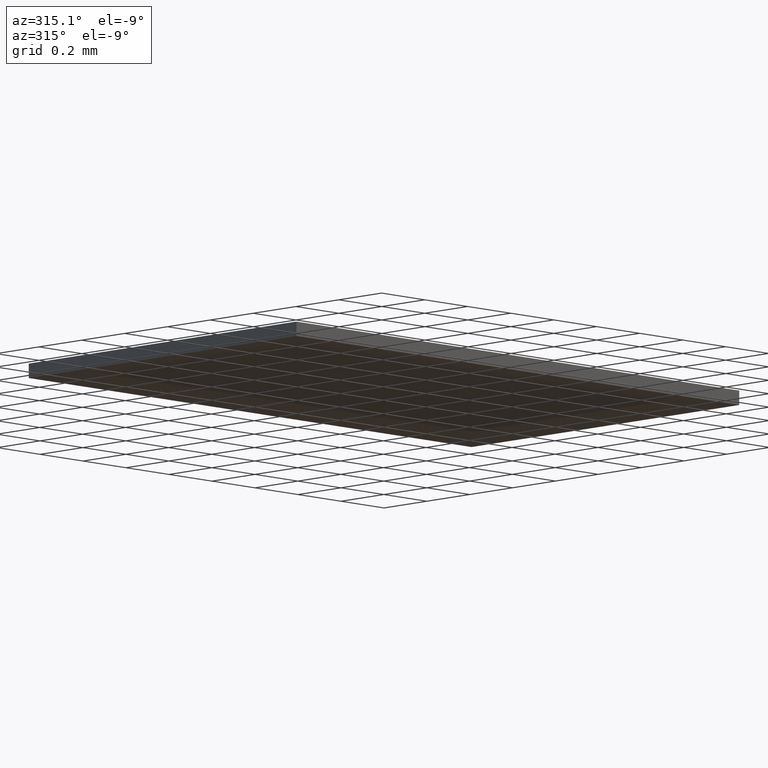
[diagram: clean part render]
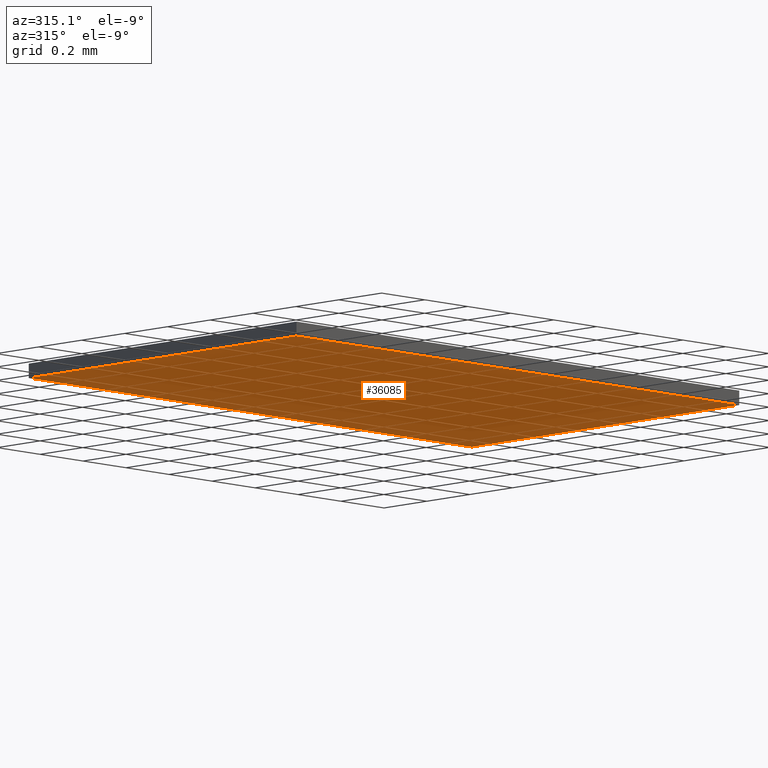
[diagram: same view with one face highlighted and labeled with its STEP entity id]
A machine part, auxiliary view. The second image highlights one B-rep face of the part: STEP entity #36085.
In plain terms, the highlighted planar face has unit normal (0, 0, 1).
Its self-contained STEP definition (entity closure, byte-faithful):
#34200=CARTESIAN_POINT('',(0.0,0.0,0.0));
#34201=VERTEX_POINT('',#34200);
#34208=CARTESIAN_POINT('',(0.081102362204724,0.0,0.0));
#34209=VERTEX_POINT('',#34208);
#34210=CARTESIAN_POINT('',(0.0,0.0,0.0));
#34211=DIRECTION('',(1.0,0.0,0.0));
#34212=VECTOR('',#34211,0.081102362204724);
#34213=LINE('',#34210,#34212);
#34214=EDGE_CURVE('',#34201,#34209,#34213,.T.);
#34231=CARTESIAN_POINT('',(1.123532E-016,0.049212598425197,0.0));
#34232=VERTEX_POINT('',#34231);
#34239=CARTESIAN_POINT('',(1.123532E-016,0.049212598425197,0.0));
#34240=DIRECTION('',(0.0,-1.0,0.0));
#34241=VECTOR('',#34240,0.049212598425197);
#34242=LINE('',#34239,#34241);
#34243=EDGE_CURVE('',#34232,#34201,#34242,.T.);
#36039=CARTESIAN_POINT('',(0.081102362204725,0.049212598425197,0.0));
#36040=VERTEX_POINT('',#36039);
#36047=CARTESIAN_POINT('',(0.081102362204725,0.049212598425197,0.0));
#36048=DIRECTION('',(-1.0,0.0,0.0));
#36049=VECTOR('',#36048,0.081102362204724);
#36050=LINE('',#36047,#36049);
#36051=EDGE_CURVE('',#36040,#34232,#36050,.T.);
#36064=CARTESIAN_POINT('',(0.081102362204724,0.0,0.0));
#36065=DIRECTION('',(0.0,1.0,0.0));
#36066=VECTOR('',#36065,0.049212598425197);
#36067=LINE('',#36064,#36066);
#36068=EDGE_CURVE('',#34209,#36040,#36067,.T.);
#36074=CARTESIAN_POINT('',(0.040551181102362,0.024606299212598,0.0));
#36075=DIRECTION('',(0.0,0.0,1.0));
#36076=DIRECTION('',(1.0,0.0,0.0));
#36077=AXIS2_PLACEMENT_3D('',#36074,#36075,#36076);
#36078=PLANE('',#36077);
#36079=ORIENTED_EDGE('',*,*,#34214,.F.);
#36080=ORIENTED_EDGE('',*,*,#34243,.F.);
#36081=ORIENTED_EDGE('',*,*,#36051,.F.);
#36082=ORIENTED_EDGE('',*,*,#36068,.F.);
#36083=EDGE_LOOP('',(#36079,#36080,#36081,#36082));
#36084=FACE_OUTER_BOUND('',#36083,.T.);
#36085=ADVANCED_FACE('',(#36084),#36078,.F.);